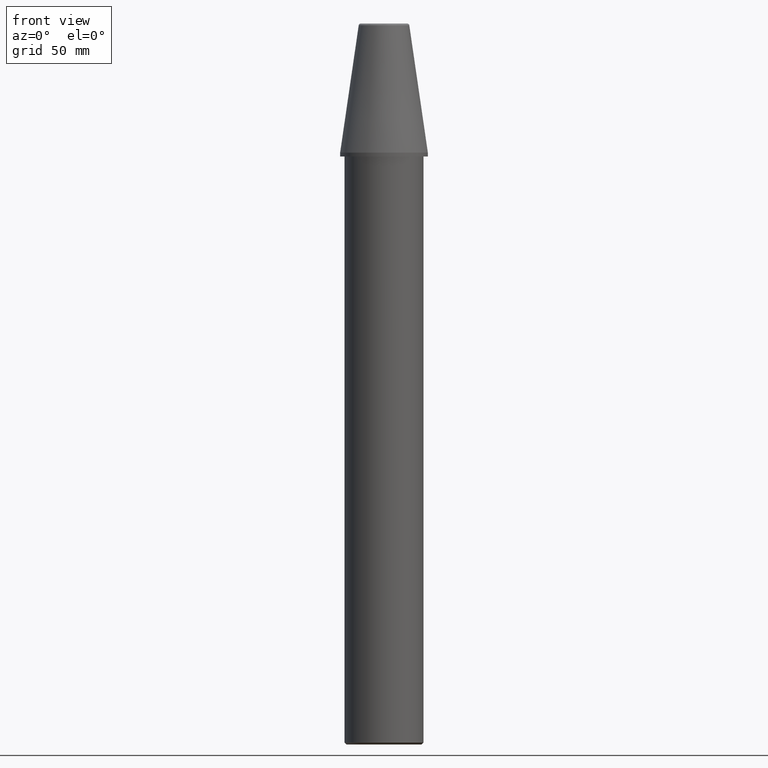
[diagram: clean part render]
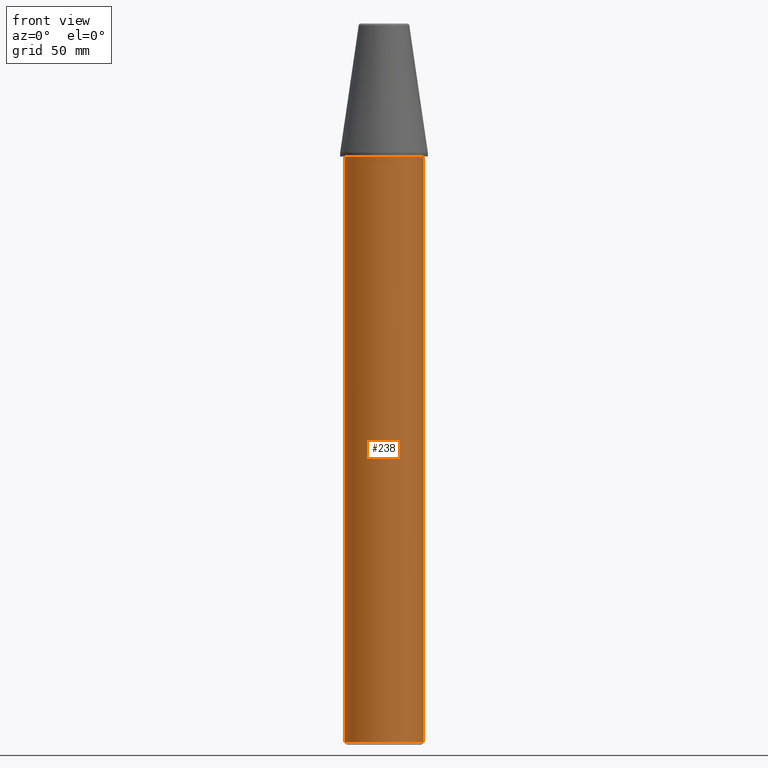
[diagram: same view with one face highlighted and labeled with its STEP entity id]
A machine part, front view. The second image highlights one B-rep face of the part: STEP entity #238.
In plain terms, the highlighted cylindrical surface (partial cylindrical patch) has radius 20 mm, axis along (0, 0, -1).
Its self-contained STEP definition (entity closure, byte-faithful):
#14 = ORIENTED_EDGE ( 'NONE', *, *, #236, .F. ) ;
#15 = ORIENTED_EDGE ( 'NONE', *, *, #92, .T. ) ;
#54 = VECTOR ( 'NONE', #207, 1000.000000000000000 ) ;
#63 = VERTEX_POINT ( 'NONE', #135 ) ;
#89 = FACE_OUTER_BOUND ( 'NONE', #328, .T. ) ;
#92 = EDGE_CURVE ( 'NONE', #315, #63, #419, .T. ) ;
#105 = EDGE_CURVE ( 'NONE', #342, #396, #370, .T. ) ;
#124 = CARTESIAN_POINT ( 'NONE',  ( 20.00000000000000000, 0.0000000000000000000, 1.000000000000000900 ) ) ;
#127 = CYLINDRICAL_SURFACE ( 'NONE', #283, 20.00000000000000000 ) ;
#135 = CARTESIAN_POINT ( 'NONE',  ( -20.00000000000000000, 0.0000000000000000000, 297.9999999999999400 ) ) ;
#179 = AXIS2_PLACEMENT_3D ( 'NONE', #322, #320, #317 ) ;
#197 = CARTESIAN_POINT ( 'NONE',  ( -20.00000000000000000, 2.449293598294706500E-015, 1.000000000000000900 ) ) ;
#199 = CARTESIAN_POINT ( 'NONE',  ( 20.00000000000000000, 2.449293598294706500E-015, 297.9999999999999400 ) ) ;
#207 = DIRECTION ( 'NONE',  ( 0.0000000000000000000, 0.0000000000000000000, -1.000000000000000000 ) ) ;
#210 = CARTESIAN_POINT ( 'NONE',  ( -20.00000000000000000, 0.0000000000000000000, 298.0000000000000000 ) ) ;
#236 = EDGE_CURVE ( 'NONE', #315, #396, #365, .T. ) ;
#238 = ADVANCED_FACE ( 'NONE', ( #89 ), #127, .T. ) ;
#255 = DIRECTION ( 'NONE',  ( -1.000000000000000000, 0.0000000000000000000, 0.0000000000000000000 ) ) ;
#257 = CARTESIAN_POINT ( 'NONE',  ( 0.0000000000000000000, 0.0000000000000000000, 298.0000000000000000 ) ) ;
#258 = DIRECTION ( 'NONE',  ( 0.0000000000000000000, 0.0000000000000000000, -1.000000000000000000 ) ) ;
#261 = DIRECTION ( 'NONE',  ( 0.0000000000000000000, 0.0000000000000000000, -1.000000000000000000 ) ) ;
#265 = CARTESIAN_POINT ( 'NONE',  ( 20.00000000000000000, 2.449293598294706500E-015, 298.0000000000000000 ) ) ;
#283 = AXIS2_PLACEMENT_3D ( 'NONE', #257, #261, #255 ) ;
#286 = LINE ( 'NONE', #210, #54 ) ;
#287 = EDGE_CURVE ( 'NONE', #63, #342, #286, .T. ) ;
#315 = VERTEX_POINT ( 'NONE', #199 ) ;
#317 = DIRECTION ( 'NONE',  ( -1.000000000000000000, 0.0000000000000000000, 0.0000000000000000000 ) ) ;
#320 = DIRECTION ( 'NONE',  ( -0.0000000000000000000, -0.0000000000000000000, 1.000000000000000000 ) ) ;
#322 = CARTESIAN_POINT ( 'NONE',  ( 0.0000000000000000000, 0.0000000000000000000, 1.000000000000000900 ) ) ;
#328 = EDGE_LOOP ( 'NONE', ( #14, #15, #425, #426 ) ) ;
#329 = DIRECTION ( 'NONE',  ( -1.000000000000000000, 0.0000000000000000000, 0.0000000000000000000 ) ) ;
#330 = DIRECTION ( 'NONE',  ( 0.0000000000000000000, 0.0000000000000000000, -1.000000000000000000 ) ) ;
#331 = CARTESIAN_POINT ( 'NONE',  ( 0.0000000000000000000, 0.0000000000000000000, 297.9999999999999400 ) ) ;
#342 = VERTEX_POINT ( 'NONE', #197 ) ;
#349 = VECTOR ( 'NONE', #258, 1000.000000000000000 ) ;
#363 = AXIS2_PLACEMENT_3D ( 'NONE', #331, #330, #329 ) ;
#365 = LINE ( 'NONE', #265, #349 ) ;
#370 = CIRCLE ( 'NONE', #179, 20.00000000000000000 ) ;
#396 = VERTEX_POINT ( 'NONE', #124 ) ;
#419 = CIRCLE ( 'NONE', #363, 20.00000000000000000 ) ;
#425 = ORIENTED_EDGE ( 'NONE', *, *, #287, .T. ) ;
#426 = ORIENTED_EDGE ( 'NONE', *, *, #105, .T. ) ;